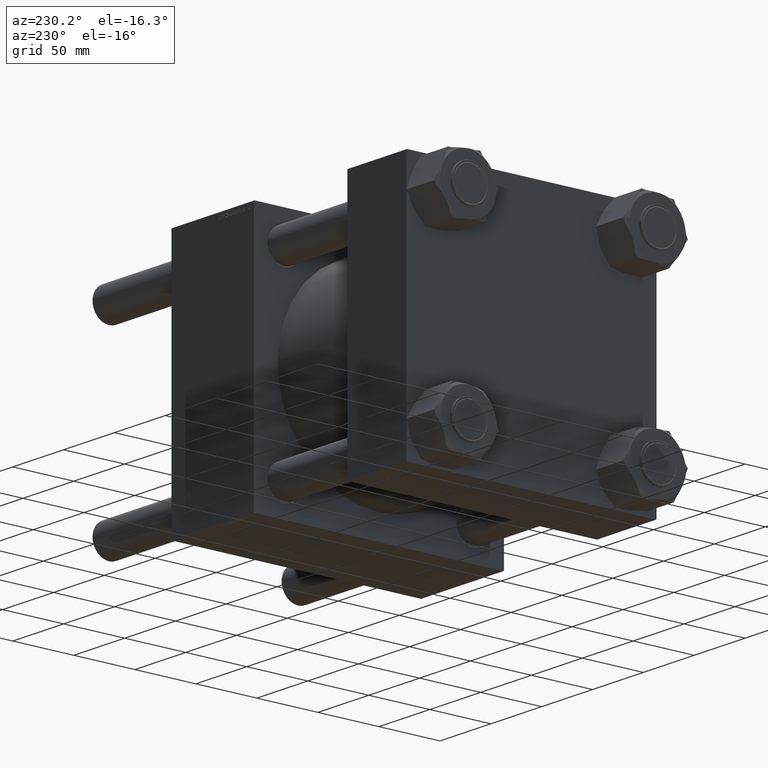
[diagram: clean part render]
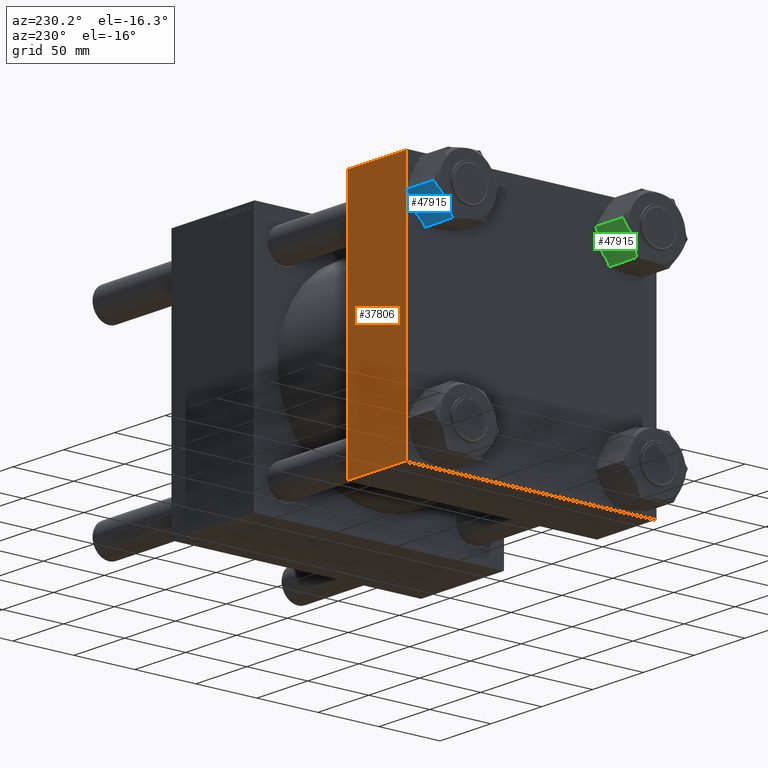
[diagram: same view with three faces highlighted in distinct colors, each labeled with its STEP entity id]
A machine part, auxiliary view with three faces highlighted in distinct colors.
Their STEP definitions:

[orange] entity #37806 — the highlighted planar face has unit normal (0, 1, 0).
#172 = CARTESIAN_POINT ( 'NONE',  ( 58.00000000000000000, 102.5000000000000284, 102.0000000000000142 ) ) ;
#1554 = EDGE_LOOP ( 'NONE', ( #27419, #21114, #57221, #7615 ) ) ;
#5727 = DIRECTION ( 'NONE',  ( 0.000000000000000000, -0.000000000000000000, 1.000000000000000000 ) ) ;
#7615 = ORIENTED_EDGE ( 'NONE', *, *, #19947, .T. ) ;
#8864 = DIRECTION ( 'NONE',  ( 1.000000000000000000, 0.000000000000000000, 0.000000000000000000 ) ) ;
#9128 = EDGE_CURVE ( 'NONE', #22910, #53204, #34462, .T. ) ;
#9253 = LINE ( 'NONE', #43788, #32585 ) ;
#10957 = EDGE_CURVE ( 'NONE', #44862, #44796, #30122, .T. ) ;
#11826 = DIRECTION ( 'NONE',  ( 0.000000000000000000, 0.000000000000000000, -1.000000000000000000 ) ) ;
#13796 = LINE ( 'NONE', #172, #14309 ) ;
#14309 = VECTOR ( 'NONE', #8864, 1000.000000000000000 ) ;
#17043 = DIRECTION ( 'NONE',  ( 0.000000000000000000, 0.000000000000000000, -1.000000000000000000 ) ) ;
#19947 = EDGE_CURVE ( 'NONE', #44862, #22910, #13796, .T. ) ;
#20261 = CARTESIAN_POINT ( 'NONE',  ( 0.000000000000000000, 102.5000000000000284, 102.5000000000000284 ) ) ;
#21114 = ORIENTED_EDGE ( 'NONE', *, *, #40781, .T. ) ;
#22910 = VERTEX_POINT ( 'NONE', #37083 ) ;
#23992 = FACE_OUTER_BOUND ( 'NONE', #1554, .T. ) ;
#24930 = CARTESIAN_POINT ( 'NONE',  ( 0.000000000000000000, 102.5000000000000284, -101.9999999999999147 ) ) ;
#27419 = ORIENTED_EDGE ( 'NONE', *, *, #9128, .T. ) ;
#28905 = CARTESIAN_POINT ( 'NONE',  ( 58.00000000000000000, 102.5000000000000284, 102.5000000000000284 ) ) ;
#29189 = DIRECTION ( 'NONE',  ( -0.000000000000000000, 1.000000000000000000, 0.000000000000000000 ) ) ;
#29712 = CARTESIAN_POINT ( 'NONE',  ( 58.00000000000000000, 102.5000000000000284, -101.9999999999999147 ) ) ;
#30122 = LINE ( 'NONE', #20261, #49285 ) ;
#32585 = VECTOR ( 'NONE', #44075, 1000.000000000000000 ) ;
#34462 = LINE ( 'NONE', #35628, #54766 ) ;
#35628 = CARTESIAN_POINT ( 'NONE',  ( 58.00000000000000000, 102.5000000000000284, 102.5000000000000284 ) ) ;
#37083 = CARTESIAN_POINT ( 'NONE',  ( 58.00000000000000000, 102.5000000000000284, 102.0000000000000142 ) ) ;
#37806 = ADVANCED_FACE ( 'NONE', ( #23992 ), #50965, .T. ) ;
#40781 = EDGE_CURVE ( 'NONE', #53204, #44796, #9253, .T. ) ;
#41660 = CARTESIAN_POINT ( 'NONE',  ( 0.000000000000000000, 102.5000000000000284, 102.0000000000000142 ) ) ;
#43788 = CARTESIAN_POINT ( 'NONE',  ( 58.00000000000000000, 102.5000000000000284, -101.9999999999999716 ) ) ;
#44075 = DIRECTION ( 'NONE',  ( -1.000000000000000000, 0.000000000000000000, 0.000000000000000000 ) ) ;
#44796 = VERTEX_POINT ( 'NONE', #24930 ) ;
#44862 = VERTEX_POINT ( 'NONE', #41660 ) ;
#49285 = VECTOR ( 'NONE', #11826, 1000.000000000000000 ) ;
#50965 = PLANE ( 'NONE',  #57348 ) ;
#53204 = VERTEX_POINT ( 'NONE', #29712 ) ;
#54766 = VECTOR ( 'NONE', #17043, 1000.000000000000000 ) ;
#57221 = ORIENTED_EDGE ( 'NONE', *, *, #10957, .F. ) ;
#57348 = AXIS2_PLACEMENT_3D ( 'NONE', #28905, #29189, #5727 ) ;

[blue] entity #47915 — the highlighted planar face has unit normal (-0, -0.8198, 0.5726).
#71 = VERTEX_POINT ( 'NONE', #4627 ) ;
#326 = CARTESIAN_POINT ( 'NONE',  ( 18.28415441059626900, 14.43810808489622133, -30.77092979404567430 ) ) ;
#653 = CARTESIAN_POINT ( 'NONE',  ( 15.06055342074747649, 20.02154878264366289, -28.99999999999999645 ) ) ;
#978 = VERTEX_POINT ( 'NONE', #653 ) ;
#1168 = CARTESIAN_POINT ( 'NONE',  ( 16.64769565855988276, 17.27253778791399341, -30.11739750492499113 ) ) ;
#1659 = PLANE ( 'NONE',  #22537 ) ;
#1959 = CARTESIAN_POINT ( 'NONE',  ( 15.06055342074748182, 20.02154878264365223, -2.000000000000000000 ) ) ;
#2771 = DIRECTION ( 'NONE',  ( -0.000000000000000000, -0.000000000000000000, 1.000000000000000000 ) ) ;
#3215 = CARTESIAN_POINT ( 'NONE',  ( 23.28230434144013472, 5.781058460827768641, -0.8826024950749986608 ) ) ;
#3643 = CARTESIAN_POINT ( 'NONE',  ( 13.31000000000000405, 23.05359624874177271, -31.00000000000000000 ) ) ;
#4179 = DIRECTION ( 'NONE',  ( 0.4999999999999998890, -0.8660254037844387076, 0.000000000000000000 ) ) ;
#4627 = CARTESIAN_POINT ( 'NONE',  ( 24.86944657925255342, 3.032047466098104049, -28.99999999999999645 ) ) ;
#5346 = EDGE_CURVE ( 'NONE', #46195, #35426, #42092, .T. ) ;
#6762 = CARTESIAN_POINT ( 'NONE',  ( 22.86684697778494524, 6.500651723057153220, -30.29409426249535997 ) ) ;
#7043 = DIRECTION ( 'NONE',  ( 0.4999999999999998890, -0.8660254037844387076, 0.000000000000000000 ) ) ;
#7323 = CARTESIAN_POINT ( 'NONE',  ( 23.27184413332395252, 5.799176072742743493, -30.08229428973083941 ) ) ;
#7609 = CARTESIAN_POINT ( 'NONE',  ( 24.47560625466581996, 3.714198918351712564, -29.30838987161980924 ) ) ;
#9033 = DIRECTION ( 'NONE',  ( -0.4999999999999998890, 0.8660254037844387076, 0.000000000000000000 ) ) ;
#9597 = CARTESIAN_POINT ( 'NONE',  ( 15.84797143746256154, 18.65770077089800338, -29.61657409342407021 ) ) ;
#10764 = VERTEX_POINT ( 'NONE', #30192 ) ;
#11674 = CARTESIAN_POINT ( 'NONE',  ( 20.81146273741196850, 10.06068165645954871, -31.00000000000001776 ) ) ;
#11927 = CARTESIAN_POINT ( 'NONE',  ( 20.17675130770548719, 11.16003410085586367, 2.008296294985563166E-14 ) ) ;
#13369 = CARTESIAN_POINT ( 'NONE',  ( 26.62000000000001165, -3.114209406997181913E-15, -2.000000000000001776 ) ) ;
#13379 = CARTESIAN_POINT ( 'NONE',  ( 17.87195049697044880, 15.15206620637486346, -30.63660360727163479 ) ) ;
#16144 = FACE_OUTER_BOUND ( 'NONE', #44446, .T. ) ;
#16859 = CARTESIAN_POINT ( 'NONE',  ( 24.08202856253745239, 4.395895477843764887, -1.383425906575932673 ) ) ;
#17050 = ORIENTED_EDGE ( 'NONE', *, *, #30737, .F. ) ;
#18276 = DIRECTION ( 'NONE',  ( -0.000000000000000000, -0.000000000000000000, 1.000000000000000000 ) ) ;
#18313 = CARTESIAN_POINT ( 'NONE',  ( 18.90939003826338549, 13.35516821107454888, -30.90723860914736676 ) ) ;
#18588 = CARTESIAN_POINT ( 'NONE',  ( 19.11895617587300933, 12.99218901318873343, -30.94181803359235161 ) ) ;
#20388 = CARTESIAN_POINT ( 'NONE',  ( 19.96500000000001407, 11.52679812437088280, -31.00000000000000000 ) ) ;
#20865 = CARTESIAN_POINT ( 'NONE',  ( 13.31000000000000227, 23.05359624874177271, -28.99999999999999645 ) ) ;
#22379 = CARTESIAN_POINT ( 'NONE',  ( 15.06055342074747649, 20.02154878264366289, -28.99999999999999645 ) ) ;
#22537 = AXIS2_PLACEMENT_3D ( 'NONE', #33846, #51555, #37067 ) ;
#23596 = EDGE_CURVE ( 'NONE', #48318, #29778, #31051, .T. ) ;
#23979 = ORIENTED_EDGE ( 'NONE', *, *, #23596, .F. ) ;
#24026 = CARTESIAN_POINT ( 'NONE',  ( 19.96500000000001762, 11.52679812437088458, 0.000000000000000000 ) ) ;
#24663 = ORIENTED_EDGE ( 'NONE', *, *, #35539, .F. ) ;
#24988 = CARTESIAN_POINT ( 'NONE',  ( 19.96500000000001762, 11.52679812437088458, 0.000000000000000000 ) ) ;
#25147 = EDGE_CURVE ( 'NONE', #43832, #10764, #47768, .T. ) ;
#27119 = B_SPLINE_CURVE_WITH_KNOTS ( 'NONE', 3,
 ( #20388, #11674, #47665, #6762, #7323, #34025, #7609, #47359 ),
 .UNSPECIFIED., .F., .F.,
 ( 4, 2, 2, 4 ),
 ( 0.01001235240522100299, 0.01501505178013392595, 0.01751640146759038397, 0.02001775115504684371 ),
 .UNSPECIFIED. ) ;
#27553 = EDGE_CURVE ( 'NONE', #56745, #71, #27119, .T. ) ;
#27605 = VECTOR ( 'NONE', #7043, 1000.000000000000114 ) ;
#28389 = CARTESIAN_POINT ( 'NONE',  ( 15.85409835805184997, 18.64708863314342580, -1.410264737635122945 ) ) ;
#29062 = CARTESIAN_POINT ( 'NONE',  ( 21.64584558940375203, 8.615488163845540726, -0.2290702059543304192 ) ) ;
#29451 = CARTESIAN_POINT ( 'NONE',  ( 13.31000000000000405, 23.05359624874177271, -2.000000000000001776 ) ) ;
#29629 = CARTESIAN_POINT ( 'NONE',  ( 20.81104382412701881, 10.06140723555303751, -0.05818196640765729843 ) ) ;
#29778 = VERTEX_POINT ( 'NONE', #13369 ) ;
#29925 = CARTESIAN_POINT ( 'NONE',  ( 20.38949137558737590, 10.79155749447877533, -0.01178697739765701032 ) ) ;
#30192 = CARTESIAN_POINT ( 'NONE',  ( 13.31000000000000227, 23.05359624874177271, -2.000000000000001776 ) ) ;
#30737 = EDGE_CURVE ( 'NONE', #978, #56745, #34379, .T. ) ;
#31051 = LINE ( 'NONE', #49626, #47781 ) ;
#31509 = EDGE_CURVE ( 'NONE', #71, #48318, #39582, .T. ) ;
#33846 = CARTESIAN_POINT ( 'NONE',  ( 13.31000000000000405, 23.05359624874177271, -31.00000000000000000 ) ) ;
#34025 = CARTESIAN_POINT ( 'NONE',  ( 24.07590164194817461, 4.406507615598330929, -29.58973526236487217 ) ) ;
#34379 = B_SPLINE_CURVE_WITH_KNOTS ( 'NONE', 3,
 ( #22379, #9597, #1168, #13379, #326, #18313, #18588, #40358, #49080, #35736 ),
 .UNSPECIFIED., .F., .F.,
 ( 4, 2, 2, 2, 4 ),
 ( 5.412492187574943929E-07, 0.005006446827219880602, 0.007509399616220444398, 0.008760876010720725429, 0.01001235240522100299 ),
 .UNSPECIFIED. ) ;
#35129 = VERTEX_POINT ( 'NONE', #40226 ) ;
#35426 = VERTEX_POINT ( 'NONE', #54367 ) ;
#35539 = EDGE_CURVE ( 'NONE', #43832, #978, #42135, .T. ) ;
#35736 = CARTESIAN_POINT ( 'NONE',  ( 19.96500000000001407, 11.52679812437088280, -31.00000000000000000 ) ) ;
#37067 = DIRECTION ( 'NONE',  ( 0.4999999999999998890, -0.8660254037844387076, 0.000000000000000000 ) ) ;
#37663 = CARTESIAN_POINT ( 'NONE',  ( 19.96500000000001762, 11.52679812437088458, 0.000000000000000000 ) ) ;
#37704 = CARTESIAN_POINT ( 'NONE',  ( 19.96500000000001407, 11.52679812437088280, -31.00000000000000000 ) ) ;
#37799 = CARTESIAN_POINT ( 'NONE',  ( 13.31000000000000405, 23.05359624874177271, -28.99999999999999645 ) ) ;
#38152 = LINE ( 'NONE', #29451, #40943 ) ;
#38437 = DIRECTION ( 'NONE',  ( -0.4999999999999998890, 0.8660254037844387076, 0.000000000000000000 ) ) ;
#38623 = CARTESIAN_POINT ( 'NONE',  ( 24.86944657925254631, 3.032047466098112931, -2.000000000000000000 ) ) ;
#39582 = LINE ( 'NONE', #39865, #47894 ) ;
#39865 = CARTESIAN_POINT ( 'NONE',  ( 13.31000000000000405, 23.05359624874177271, -28.99999999999999645 ) ) ;
#40226 = CARTESIAN_POINT ( 'NONE',  ( 24.86944657925254631, 3.032047466098112931, -2.000000000000000000 ) ) ;
#40358 = CARTESIAN_POINT ( 'NONE',  ( 19.54050862441264513, 12.26203875426298673, -30.98821302260232358 ) ) ;
#40943 = VECTOR ( 'NONE', #38437, 1000.000000000000114 ) ;
#41214 = EDGE_CURVE ( 'NONE', #35426, #10764, #38152, .T. ) ;
#41703 = CARTESIAN_POINT ( 'NONE',  ( 15.45439374533419397, 19.33939733039004238, -1.691610128380184097 ) ) ;
#42092 = B_SPLINE_CURVE_WITH_KNOTS ( 'NONE', 3,
 ( #37663, #54790, #55371, #50449, #55087, #28389, #41703, #1959 ),
 .UNSPECIFIED., .F., .F.,
 ( 4, 2, 2, 4 ),
 ( 0.01001235240522101166, 0.01501505178013393116, 0.01751640146759038744, 0.02001775115504684371 ),
 .UNSPECIFIED. ) ;
#42135 = LINE ( 'NONE', #37799, #27605 ) ;
#42345 = ORIENTED_EDGE ( 'NONE', *, *, #31509, .F. ) ;
#43506 = EDGE_CURVE ( 'NONE', #35129, #46195, #45181, .T. ) ;
#43832 = VERTEX_POINT ( 'NONE', #20865 ) ;
#44446 = EDGE_LOOP ( 'NONE', ( #24663, #54569, #45239, #56834, #57165, #45473, #23979, #42345, #54731, #17050 ) ) ;
#45181 = B_SPLINE_CURVE_WITH_KNOTS ( 'NONE', 3,
 ( #38623, #16859, #3215, #51971, #29062, #51121, #29629, #29925, #11927, #24988 ),
 .UNSPECIFIED., .F., .F.,
 ( 4, 2, 2, 2, 4 ),
 ( 5.412492187791932595E-07, 0.005006446827219891010, 0.007509399616220448735, 0.008760876010720730633, 0.01001235240522101166 ),
 .UNSPECIFIED. ) ;
#45239 = ORIENTED_EDGE ( 'NONE', *, *, #41214, .F. ) ;
#45473 = ORIENTED_EDGE ( 'NONE', *, *, #53415, .F. ) ;
#46195 = VERTEX_POINT ( 'NONE', #24026 ) ;
#47359 = CARTESIAN_POINT ( 'NONE',  ( 24.86944657925255342, 3.032047466098104049, -28.99999999999999645 ) ) ;
#47665 = CARTESIAN_POINT ( 'NONE',  ( 21.64175213325209057, 8.622578237878782303, -30.81213813433825166 ) ) ;
#47768 = LINE ( 'NONE', #3643, #47860 ) ;
#47781 = VECTOR ( 'NONE', #18276, 1000.000000000000000 ) ;
#47860 = VECTOR ( 'NONE', #2771, 1000.000000000000000 ) ;
#47894 = VECTOR ( 'NONE', #4179, 1000.000000000000114 ) ;
#47915 = ADVANCED_FACE ( 'NONE', ( #16144 ), #1659, .F. ) ;
#48318 = VERTEX_POINT ( 'NONE', #51129 ) ;
#48805 = LINE ( 'NONE', #56934, #49554 ) ;
#49080 = CARTESIAN_POINT ( 'NONE',  ( 19.75324869229453384, 11.89356214788590016, -31.00000000000001066 ) ) ;
#49554 = VECTOR ( 'NONE', #9033, 1000.000000000000114 ) ;
#49626 = CARTESIAN_POINT ( 'NONE',  ( 26.62000000000001165, -3.114209406997181913E-15, -31.00000000000000000 ) ) ;
#50449 = CARTESIAN_POINT ( 'NONE',  ( 17.06315302221506869, 16.55294452568460173, -0.7059057375046257077 ) ) ;
#51121 = CARTESIAN_POINT ( 'NONE',  ( 21.02060996173663909, 9.698428037667214952, -0.09276139085263580830 ) ) ;
#51129 = CARTESIAN_POINT ( 'NONE',  ( 26.62000000000001165, -3.114209406997181913E-15, -28.99999999999999645 ) ) ;
#51555 = DIRECTION ( 'NONE',  ( -0.8660254037844387076, -0.4999999999999998890, 0.000000000000000000 ) ) ;
#51971 = CARTESIAN_POINT ( 'NONE',  ( 22.05804950302956513, 7.901530042366891493, -0.3633963927283470063 ) ) ;
#53415 = EDGE_CURVE ( 'NONE', #29778, #35129, #48805, .T. ) ;
#54367 = CARTESIAN_POINT ( 'NONE',  ( 15.06055342074748182, 20.02154878264365223, -2.000000000000000000 ) ) ;
#54569 = ORIENTED_EDGE ( 'NONE', *, *, #25147, .T. ) ;
#54731 = ORIENTED_EDGE ( 'NONE', *, *, #27553, .F. ) ;
#54790 = CARTESIAN_POINT ( 'NONE',  ( 19.11853726258806674, 12.99291459228221335, 1.998546004614949767E-14 ) ) ;
#55087 = CARTESIAN_POINT ( 'NONE',  ( 16.65815586667607562, 17.25442017599901590, -0.9177057102691500434 ) ) ;
#55371 = CARTESIAN_POINT ( 'NONE',  ( 18.28824786674793046, 14.43101801086297620, -0.1878618656617424831 ) ) ;
#56745 = VERTEX_POINT ( 'NONE', #37704 ) ;
#56834 = ORIENTED_EDGE ( 'NONE', *, *, #5346, .F. ) ;
#56934 = CARTESIAN_POINT ( 'NONE',  ( 13.31000000000000405, 23.05359624874177271, -2.000000000000001776 ) ) ;
#57165 = ORIENTED_EDGE ( 'NONE', *, *, #43506, .F. ) ;

[green] entity #47915 — the highlighted planar face has unit normal (0, -0.9058, 0.4237).
#71 = VERTEX_POINT ( 'NONE', #4627 ) ;
#326 = CARTESIAN_POINT ( 'NONE',  ( 18.28415441059626900, 14.43810808489622133, -30.77092979404567430 ) ) ;
#653 = CARTESIAN_POINT ( 'NONE',  ( 15.06055342074747649, 20.02154878264366289, -28.99999999999999645 ) ) ;
#978 = VERTEX_POINT ( 'NONE', #653 ) ;
#1168 = CARTESIAN_POINT ( 'NONE',  ( 16.64769565855988276, 17.27253778791399341, -30.11739750492499113 ) ) ;
#1659 = PLANE ( 'NONE',  #22537 ) ;
#1959 = CARTESIAN_POINT ( 'NONE',  ( 15.06055342074748182, 20.02154878264365223, -2.000000000000000000 ) ) ;
#2771 = DIRECTION ( 'NONE',  ( -0.000000000000000000, -0.000000000000000000, 1.000000000000000000 ) ) ;
#3215 = CARTESIAN_POINT ( 'NONE',  ( 23.28230434144013472, 5.781058460827768641, -0.8826024950749986608 ) ) ;
#3643 = CARTESIAN_POINT ( 'NONE',  ( 13.31000000000000405, 23.05359624874177271, -31.00000000000000000 ) ) ;
#4179 = DIRECTION ( 'NONE',  ( 0.4999999999999998890, -0.8660254037844387076, 0.000000000000000000 ) ) ;
#4627 = CARTESIAN_POINT ( 'NONE',  ( 24.86944657925255342, 3.032047466098104049, -28.99999999999999645 ) ) ;
#5346 = EDGE_CURVE ( 'NONE', #46195, #35426, #42092, .T. ) ;
#6762 = CARTESIAN_POINT ( 'NONE',  ( 22.86684697778494524, 6.500651723057153220, -30.29409426249535997 ) ) ;
#7043 = DIRECTION ( 'NONE',  ( 0.4999999999999998890, -0.8660254037844387076, 0.000000000000000000 ) ) ;
#7323 = CARTESIAN_POINT ( 'NONE',  ( 23.27184413332395252, 5.799176072742743493, -30.08229428973083941 ) ) ;
#7609 = CARTESIAN_POINT ( 'NONE',  ( 24.47560625466581996, 3.714198918351712564, -29.30838987161980924 ) ) ;
#9033 = DIRECTION ( 'NONE',  ( -0.4999999999999998890, 0.8660254037844387076, 0.000000000000000000 ) ) ;
#9597 = CARTESIAN_POINT ( 'NONE',  ( 15.84797143746256154, 18.65770077089800338, -29.61657409342407021 ) ) ;
#10764 = VERTEX_POINT ( 'NONE', #30192 ) ;
#11674 = CARTESIAN_POINT ( 'NONE',  ( 20.81146273741196850, 10.06068165645954871, -31.00000000000001776 ) ) ;
#11927 = CARTESIAN_POINT ( 'NONE',  ( 20.17675130770548719, 11.16003410085586367, 2.008296294985563166E-14 ) ) ;
#13369 = CARTESIAN_POINT ( 'NONE',  ( 26.62000000000001165, -3.114209406997181913E-15, -2.000000000000001776 ) ) ;
#13379 = CARTESIAN_POINT ( 'NONE',  ( 17.87195049697044880, 15.15206620637486346, -30.63660360727163479 ) ) ;
#16144 = FACE_OUTER_BOUND ( 'NONE', #44446, .T. ) ;
#16859 = CARTESIAN_POINT ( 'NONE',  ( 24.08202856253745239, 4.395895477843764887, -1.383425906575932673 ) ) ;
#17050 = ORIENTED_EDGE ( 'NONE', *, *, #30737, .F. ) ;
#18276 = DIRECTION ( 'NONE',  ( -0.000000000000000000, -0.000000000000000000, 1.000000000000000000 ) ) ;
#18313 = CARTESIAN_POINT ( 'NONE',  ( 18.90939003826338549, 13.35516821107454888, -30.90723860914736676 ) ) ;
#18588 = CARTESIAN_POINT ( 'NONE',  ( 19.11895617587300933, 12.99218901318873343, -30.94181803359235161 ) ) ;
#20388 = CARTESIAN_POINT ( 'NONE',  ( 19.96500000000001407, 11.52679812437088280, -31.00000000000000000 ) ) ;
#20865 = CARTESIAN_POINT ( 'NONE',  ( 13.31000000000000227, 23.05359624874177271, -28.99999999999999645 ) ) ;
#22379 = CARTESIAN_POINT ( 'NONE',  ( 15.06055342074747649, 20.02154878264366289, -28.99999999999999645 ) ) ;
#22537 = AXIS2_PLACEMENT_3D ( 'NONE', #33846, #51555, #37067 ) ;
#23596 = EDGE_CURVE ( 'NONE', #48318, #29778, #31051, .T. ) ;
#23979 = ORIENTED_EDGE ( 'NONE', *, *, #23596, .F. ) ;
#24026 = CARTESIAN_POINT ( 'NONE',  ( 19.96500000000001762, 11.52679812437088458, 0.000000000000000000 ) ) ;
#24663 = ORIENTED_EDGE ( 'NONE', *, *, #35539, .F. ) ;
#24988 = CARTESIAN_POINT ( 'NONE',  ( 19.96500000000001762, 11.52679812437088458, 0.000000000000000000 ) ) ;
#25147 = EDGE_CURVE ( 'NONE', #43832, #10764, #47768, .T. ) ;
#27119 = B_SPLINE_CURVE_WITH_KNOTS ( 'NONE', 3,
 ( #20388, #11674, #47665, #6762, #7323, #34025, #7609, #47359 ),
 .UNSPECIFIED., .F., .F.,
 ( 4, 2, 2, 4 ),
 ( 0.01001235240522100299, 0.01501505178013392595, 0.01751640146759038397, 0.02001775115504684371 ),
 .UNSPECIFIED. ) ;
#27553 = EDGE_CURVE ( 'NONE', #56745, #71, #27119, .T. ) ;
#27605 = VECTOR ( 'NONE', #7043, 1000.000000000000114 ) ;
#28389 = CARTESIAN_POINT ( 'NONE',  ( 15.85409835805184997, 18.64708863314342580, -1.410264737635122945 ) ) ;
#29062 = CARTESIAN_POINT ( 'NONE',  ( 21.64584558940375203, 8.615488163845540726, -0.2290702059543304192 ) ) ;
#29451 = CARTESIAN_POINT ( 'NONE',  ( 13.31000000000000405, 23.05359624874177271, -2.000000000000001776 ) ) ;
#29629 = CARTESIAN_POINT ( 'NONE',  ( 20.81104382412701881, 10.06140723555303751, -0.05818196640765729843 ) ) ;
#29778 = VERTEX_POINT ( 'NONE', #13369 ) ;
#29925 = CARTESIAN_POINT ( 'NONE',  ( 20.38949137558737590, 10.79155749447877533, -0.01178697739765701032 ) ) ;
#30192 = CARTESIAN_POINT ( 'NONE',  ( 13.31000000000000227, 23.05359624874177271, -2.000000000000001776 ) ) ;
#30737 = EDGE_CURVE ( 'NONE', #978, #56745, #34379, .T. ) ;
#31051 = LINE ( 'NONE', #49626, #47781 ) ;
#31509 = EDGE_CURVE ( 'NONE', #71, #48318, #39582, .T. ) ;
#33846 = CARTESIAN_POINT ( 'NONE',  ( 13.31000000000000405, 23.05359624874177271, -31.00000000000000000 ) ) ;
#34025 = CARTESIAN_POINT ( 'NONE',  ( 24.07590164194817461, 4.406507615598330929, -29.58973526236487217 ) ) ;
#34379 = B_SPLINE_CURVE_WITH_KNOTS ( 'NONE', 3,
 ( #22379, #9597, #1168, #13379, #326, #18313, #18588, #40358, #49080, #35736 ),
 .UNSPECIFIED., .F., .F.,
 ( 4, 2, 2, 2, 4 ),
 ( 5.412492187574943929E-07, 0.005006446827219880602, 0.007509399616220444398, 0.008760876010720725429, 0.01001235240522100299 ),
 .UNSPECIFIED. ) ;
#35129 = VERTEX_POINT ( 'NONE', #40226 ) ;
#35426 = VERTEX_POINT ( 'NONE', #54367 ) ;
#35539 = EDGE_CURVE ( 'NONE', #43832, #978, #42135, .T. ) ;
#35736 = CARTESIAN_POINT ( 'NONE',  ( 19.96500000000001407, 11.52679812437088280, -31.00000000000000000 ) ) ;
#37067 = DIRECTION ( 'NONE',  ( 0.4999999999999998890, -0.8660254037844387076, 0.000000000000000000 ) ) ;
#37663 = CARTESIAN_POINT ( 'NONE',  ( 19.96500000000001762, 11.52679812437088458, 0.000000000000000000 ) ) ;
#37704 = CARTESIAN_POINT ( 'NONE',  ( 19.96500000000001407, 11.52679812437088280, -31.00000000000000000 ) ) ;
#37799 = CARTESIAN_POINT ( 'NONE',  ( 13.31000000000000405, 23.05359624874177271, -28.99999999999999645 ) ) ;
#38152 = LINE ( 'NONE', #29451, #40943 ) ;
#38437 = DIRECTION ( 'NONE',  ( -0.4999999999999998890, 0.8660254037844387076, 0.000000000000000000 ) ) ;
#38623 = CARTESIAN_POINT ( 'NONE',  ( 24.86944657925254631, 3.032047466098112931, -2.000000000000000000 ) ) ;
#39582 = LINE ( 'NONE', #39865, #47894 ) ;
#39865 = CARTESIAN_POINT ( 'NONE',  ( 13.31000000000000405, 23.05359624874177271, -28.99999999999999645 ) ) ;
#40226 = CARTESIAN_POINT ( 'NONE',  ( 24.86944657925254631, 3.032047466098112931, -2.000000000000000000 ) ) ;
#40358 = CARTESIAN_POINT ( 'NONE',  ( 19.54050862441264513, 12.26203875426298673, -30.98821302260232358 ) ) ;
#40943 = VECTOR ( 'NONE', #38437, 1000.000000000000114 ) ;
#41214 = EDGE_CURVE ( 'NONE', #35426, #10764, #38152, .T. ) ;
#41703 = CARTESIAN_POINT ( 'NONE',  ( 15.45439374533419397, 19.33939733039004238, -1.691610128380184097 ) ) ;
#42092 = B_SPLINE_CURVE_WITH_KNOTS ( 'NONE', 3,
 ( #37663, #54790, #55371, #50449, #55087, #28389, #41703, #1959 ),
 .UNSPECIFIED., .F., .F.,
 ( 4, 2, 2, 4 ),
 ( 0.01001235240522101166, 0.01501505178013393116, 0.01751640146759038744, 0.02001775115504684371 ),
 .UNSPECIFIED. ) ;
#42135 = LINE ( 'NONE', #37799, #27605 ) ;
#42345 = ORIENTED_EDGE ( 'NONE', *, *, #31509, .F. ) ;
#43506 = EDGE_CURVE ( 'NONE', #35129, #46195, #45181, .T. ) ;
#43832 = VERTEX_POINT ( 'NONE', #20865 ) ;
#44446 = EDGE_LOOP ( 'NONE', ( #24663, #54569, #45239, #56834, #57165, #45473, #23979, #42345, #54731, #17050 ) ) ;
#45181 = B_SPLINE_CURVE_WITH_KNOTS ( 'NONE', 3,
 ( #38623, #16859, #3215, #51971, #29062, #51121, #29629, #29925, #11927, #24988 ),
 .UNSPECIFIED., .F., .F.,
 ( 4, 2, 2, 2, 4 ),
 ( 5.412492187791932595E-07, 0.005006446827219891010, 0.007509399616220448735, 0.008760876010720730633, 0.01001235240522101166 ),
 .UNSPECIFIED. ) ;
#45239 = ORIENTED_EDGE ( 'NONE', *, *, #41214, .F. ) ;
#45473 = ORIENTED_EDGE ( 'NONE', *, *, #53415, .F. ) ;
#46195 = VERTEX_POINT ( 'NONE', #24026 ) ;
#47359 = CARTESIAN_POINT ( 'NONE',  ( 24.86944657925255342, 3.032047466098104049, -28.99999999999999645 ) ) ;
#47665 = CARTESIAN_POINT ( 'NONE',  ( 21.64175213325209057, 8.622578237878782303, -30.81213813433825166 ) ) ;
#47768 = LINE ( 'NONE', #3643, #47860 ) ;
#47781 = VECTOR ( 'NONE', #18276, 1000.000000000000000 ) ;
#47860 = VECTOR ( 'NONE', #2771, 1000.000000000000000 ) ;
#47894 = VECTOR ( 'NONE', #4179, 1000.000000000000114 ) ;
#47915 = ADVANCED_FACE ( 'NONE', ( #16144 ), #1659, .F. ) ;
#48318 = VERTEX_POINT ( 'NONE', #51129 ) ;
#48805 = LINE ( 'NONE', #56934, #49554 ) ;
#49080 = CARTESIAN_POINT ( 'NONE',  ( 19.75324869229453384, 11.89356214788590016, -31.00000000000001066 ) ) ;
#49554 = VECTOR ( 'NONE', #9033, 1000.000000000000114 ) ;
#49626 = CARTESIAN_POINT ( 'NONE',  ( 26.62000000000001165, -3.114209406997181913E-15, -31.00000000000000000 ) ) ;
#50449 = CARTESIAN_POINT ( 'NONE',  ( 17.06315302221506869, 16.55294452568460173, -0.7059057375046257077 ) ) ;
#51121 = CARTESIAN_POINT ( 'NONE',  ( 21.02060996173663909, 9.698428037667214952, -0.09276139085263580830 ) ) ;
#51129 = CARTESIAN_POINT ( 'NONE',  ( 26.62000000000001165, -3.114209406997181913E-15, -28.99999999999999645 ) ) ;
#51555 = DIRECTION ( 'NONE',  ( -0.8660254037844387076, -0.4999999999999998890, 0.000000000000000000 ) ) ;
#51971 = CARTESIAN_POINT ( 'NONE',  ( 22.05804950302956513, 7.901530042366891493, -0.3633963927283470063 ) ) ;
#53415 = EDGE_CURVE ( 'NONE', #29778, #35129, #48805, .T. ) ;
#54367 = CARTESIAN_POINT ( 'NONE',  ( 15.06055342074748182, 20.02154878264365223, -2.000000000000000000 ) ) ;
#54569 = ORIENTED_EDGE ( 'NONE', *, *, #25147, .T. ) ;
#54731 = ORIENTED_EDGE ( 'NONE', *, *, #27553, .F. ) ;
#54790 = CARTESIAN_POINT ( 'NONE',  ( 19.11853726258806674, 12.99291459228221335, 1.998546004614949767E-14 ) ) ;
#55087 = CARTESIAN_POINT ( 'NONE',  ( 16.65815586667607562, 17.25442017599901590, -0.9177057102691500434 ) ) ;
#55371 = CARTESIAN_POINT ( 'NONE',  ( 18.28824786674793046, 14.43101801086297620, -0.1878618656617424831 ) ) ;
#56745 = VERTEX_POINT ( 'NONE', #37704 ) ;
#56834 = ORIENTED_EDGE ( 'NONE', *, *, #5346, .F. ) ;
#56934 = CARTESIAN_POINT ( 'NONE',  ( 13.31000000000000405, 23.05359624874177271, -2.000000000000001776 ) ) ;
#57165 = ORIENTED_EDGE ( 'NONE', *, *, #43506, .F. ) ;